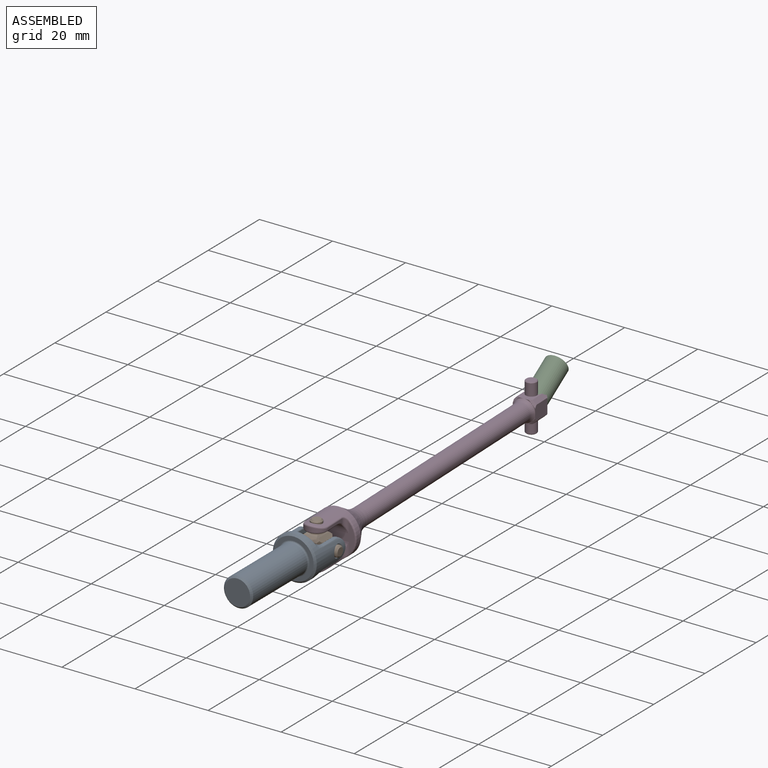
[diagram: assembled view]
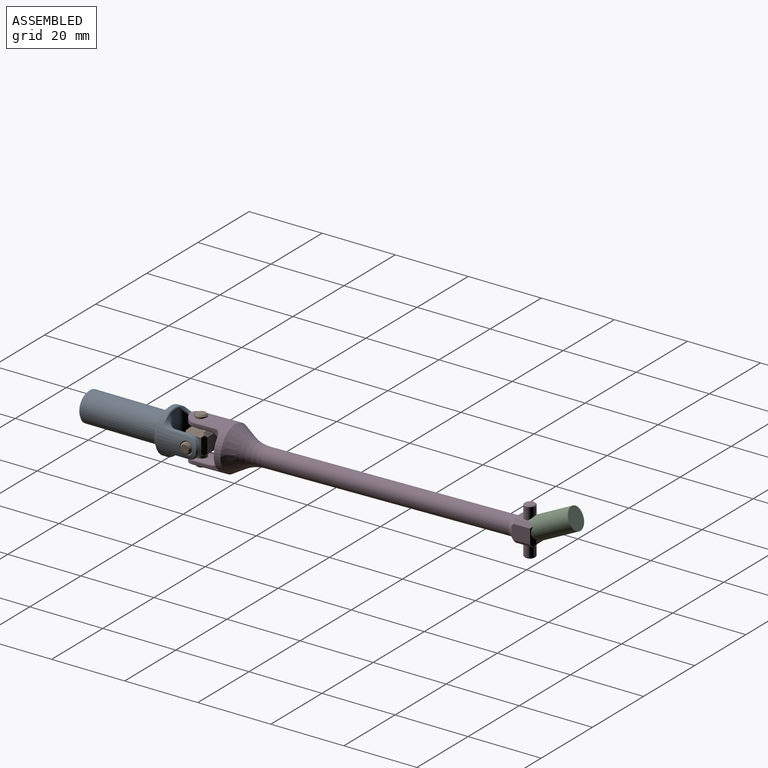
[diagram: assembled view, second angle]
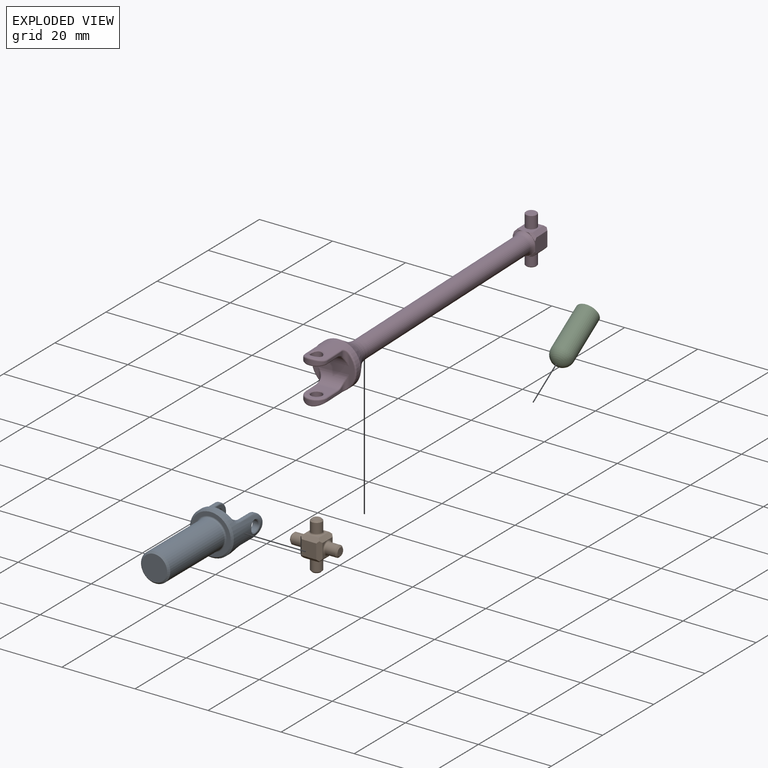
[diagram: exploded view]
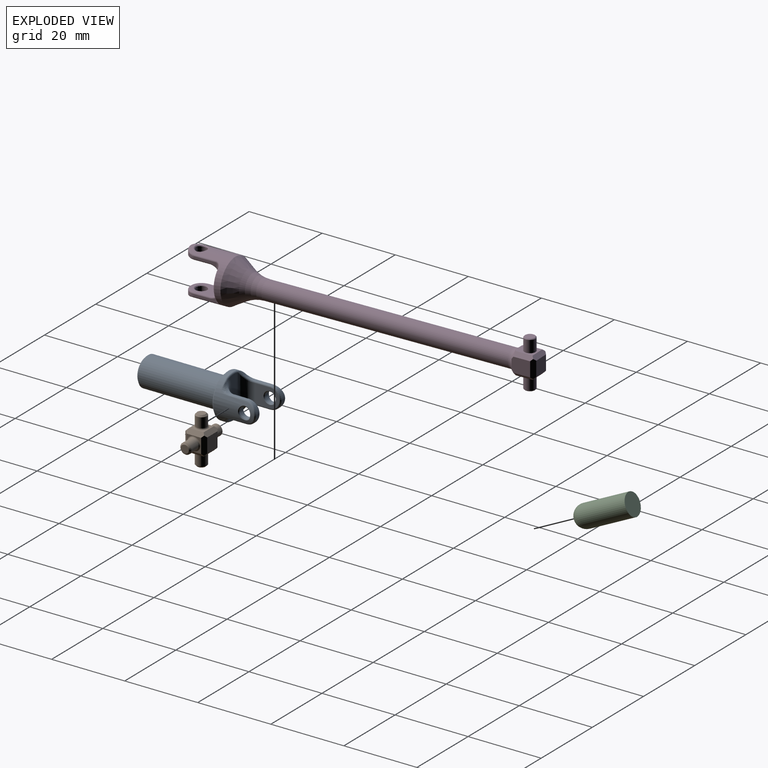
[diagram: exploded view, second angle]
ASSEMBLY  parts=4 mates=3
PART A: 81 faces, bbox 13.8x34.3x14.2 mm
  f0: torus R=4.4mm, axis (0,-1,0), area 8.2mm2, adj f1,f10,f11
  f1: cylinder r=4mm len=21.1mm, axis (0,-1,0), area 530.3mm2, adj f0,f2,f10
  f2: cone r=4mm half-angle=45deg, axis (0,1,0), area 16.7mm2, adj f1,f12
  f3: cone r=6mm half-angle=45deg, axis (0,1,0), area 25.5mm2, adj f4,f11
  f4: cylinder r=6mm len=12mm, axis (0,-1,0), area 137.9mm2, adj f3,f13,f14,f15,f16,f17,f18,f19
  f5: cylinder r=1.5mm len=3mm, axis (1,0,0), area 15.1mm2, adj f8,f18,f34
  f6: cylinder r=1.5mm len=3mm, axis (1,0,0), area 15.1mm2, adj f9,f19,f33
  f7: cylinder r=3mm len=6mm, axis (1,0,0), area 8.3mm2, adj f20,f32,f46,f52,f61
  f8: cone r=1.7mm half-angle=45deg, axis (-1,0,0), area 2.8mm2, adj f5,f76
  f9: cone r=1.7mm half-angle=45deg, axis (1,0,0), area 2.8mm2, adj f6,f77
  f10: torus R=4.4mm, axis (0,-1,0), area 8.2mm2, adj f0,f1,f11
  f11: plane 11x11mm, normal (0,-1,0), area 34.2mm2, adj f0,f3,f10
  f12: plane 7x7mm, normal (0,-1,0), area 38.5mm2, adj f2
  f13: bspline ~1.43x1.2mm, area 0.3mm2, adj f4,f27,f43
  f14: bspline ~1.88x0.43mm, area 0.4mm2, adj f4,f15,f43
  f15: bspline ~0.59x0.36mm, area 0.2mm2, adj f4,f14,f16,f57
  f16: cylinder r=0.4mm len=4.59mm, axis (0,-1,0), area 2mm2, adj f4,f15,f17,f44
  f17: bspline ~3.14x3mm, area 2.5mm2, adj f4,f16,f35,f45
  f18: bspline ~3.41x1.83mm, area 1.5mm2, adj f4,f5,f34
  f19: bspline ~3.41x1.82mm, area 1.5mm2, adj f4,f6,f33
  f20: bspline ~3.14x3mm, area 2.5mm2, adj f4,f7,f21,f32
  f21: cylinder r=0.4mm len=4.59mm, axis (0,1,0), area 2mm2, adj f4,f20,f22,f46
  f22: bspline ~3.76x3.08mm, area 2.4mm2, adj f4,f21,f47,f48
  f23: bspline ~0.7x0.54mm, area 0.4mm2, adj f4,f24,f48,f65
  f24: torus R=5.6mm, axis (0,-1,0), area 2mm2, adj f4,f23,f25,f49
  f25: bspline ~1.03x0.69mm, area 0.5mm2, adj f4,f24,f26,f68
  f26: bspline ~0.78x0.6mm, area 0.3mm2, adj f4,f25,f27,f50
  f27: bspline ~0.78x0.58mm, area 0.3mm2, adj f4,f13,f26,f57
  f28: bspline ~1.43x1.2mm, area 0.3mm2, adj f4,f42,f51
  f29: bspline ~1.88x0.43mm, area 0.4mm2, adj f4,f30,f51
  f30: bspline ~0.59x0.36mm, area 0.2mm2, adj f4,f29,f31,f69
  f31: cylinder r=0.4mm len=4.59mm, axis (0,-1,0), area 2mm2, adj f4,f30,f32,f52
  f32: bspline ~3.14x3mm, area 2.5mm2, adj f4,f7,f20,f31
  f33: bspline ~3.41x1.83mm, area 1.5mm2, adj f4,f6,f19
  f34: bspline ~3.41x1.82mm, area 1.5mm2, adj f4,f5,f18
  f35: bspline ~3.14x3mm, area 2.5mm2, adj f4,f17,f36,f45
  f36: cylinder r=0.4mm len=4.59mm, axis (0,1,0), area 2mm2, adj f4,f35,f37,f53
  f37: bspline ~3.76x3.1mm, area 2.4mm2, adj f4,f36,f54,f55
  f38: bspline ~0.7x0.54mm, area 0.4mm2, adj f4,f39,f55,f67
  f39: torus R=5.6mm, axis (0,-1,0), area 2mm2, adj f4,f38,f40,f49
  f40: bspline ~1.03x0.69mm, area 0.5mm2, adj f4,f39,f41,f66
  f41: bspline ~0.78x0.6mm, area 0.3mm2, adj f4,f40,f42,f56
  f42: bspline ~0.78x0.58mm, area 0.3mm2, adj f4,f28,f41,f69
  f43: bspline ~4.21x2.04mm, area 1.5mm2, adj f13,f14,f57
  f44: plane 4.6x0.59mm, normal (0,0,1), area 2.5mm2, adj f16,f45,f57,f58,f59
  f45: cylinder r=3mm len=6mm, axis (-1,0,0), area 8.3mm2, adj f17,f35,f44,f53,f60
  f46: plane 4.59x0.58mm, normal (0,0,1), area 2.5mm2, adj f7,f21,f47,f62,f63
  f47: bspline ~5.32x2.92mm, area 4mm2, adj f22,f46,f64
  f48: sphere r=0.4mm, area 0mm2, adj f22,f23,f64
  f49: plane 11.2x3.99mm, normal (0,1,0), area 24mm2, adj f24,f39,f65,f66,f67,f68
  f50: bspline ~1.22x0.9mm, area 0.3mm2, adj f26,f57,f68,f80
  f51: bspline ~4.21x2.04mm, area 1.5mm2, adj f28,f29,f69
  f52: plane 4.6x0.59mm, normal (0,0,-1), area 2.5mm2, adj f7,f31,f69,f70,f71
  f53: plane 4.59x0.58mm, normal (0,0,-1), area 2.5mm2, adj f36,f45,f54,f72,f73
  f54: bspline ~5.32x2.92mm, area 4mm2, adj f37,f53,f74
  f55: sphere r=0.4mm, area 0mm2, adj f37,f38,f74
  f56: bspline ~1.22x0.9mm, area 0.3mm2, adj f41,f66,f69,f79
  f57: bspline ~2.55x2.01mm, area 2.2mm2, adj f15,f27,f43,f44,f50,f75,f80
  f58: cylinder r=0.4mm len=4mm, axis (0,-1,0), area 2.5mm2, adj f44,f59,f60,f76
  f59: torus R=3.4mm, axis (0,0,1), area 0.2mm2, adj f44,f58,f67,f75
  f60: torus R=2.6mm, axis (-1,0,0), area 5.6mm2, adj f45,f58,f73,f76
  f61: torus R=2.6mm, axis (1,0,0), area 5.6mm2, adj f7,f63,f70,f77
  f62: torus R=3.4mm, axis (0,0,-1), area 0.2mm2, adj f46,f63,f64,f65
  f63: cylinder r=0.4mm len=4mm, axis (0,1,0), area 2.5mm2, adj f46,f61,f62,f77
  f64: bspline ~3.05x2.98mm, area 2.1mm2, adj f47,f48,f62,f65
  f65: cylinder r=3mm len=8.51mm, axis (0,0,-1), area 31.2mm2, adj f23,f49,f62,f64,f66,f71,f77,f78
  f66: torus R=3mm, axis (0,-1,0), area 4.3mm2, adj f40,f49,f56,f65,f79
  f67: cylinder r=3mm len=8.51mm, axis (0,0,1), area 31.2mm2, adj f38,f49,f59,f68,f72,f74,f75,f76
  f68: torus R=3mm, axis (0,-1,0), area 4.3mm2, adj f25,f49,f50,f67,f80
  f69: bspline ~2.55x2.01mm, area 2.2mm2, adj f30,f42,f51,f52,f56,f78,f79
  f70: cylinder r=0.4mm len=4mm, axis (0,-1,0), area 2.5mm2, adj f52,f61,f71,f77
  f71: torus R=3.4mm, axis (0,0,-1), area 0.2mm2, adj f52,f65,f70,f78
  f72: torus R=3.4mm, axis (0,0,1), area 0.2mm2, adj f53,f67,f73,f74
  f73: cylinder r=0.4mm len=4mm, axis (0,1,0), area 2.5mm2, adj f53,f60,f72,f76
  f74: bspline ~3.05x2.98mm, area 2.1mm2, adj f54,f55,f67,f72
  f75: bspline ~1.37x0.89mm, area 0.9mm2, adj f57,f59,f67,f80
  f76: plane 6.6x5.2mm, normal (-1,0,0), area 22.3mm2, adj f8,f58,f60,f67,f73
  f77: plane 6.6x5.2mm, normal (1,0,0), area 22.3mm2, adj f9,f61,f63,f65,f70
  f78: bspline ~1.37x0.89mm, area 0.9mm2, adj f65,f69,f71,f79
  f79: bspline ~1.57x1.43mm, area 0.6mm2, adj f56,f66,f69,f78
  f80: bspline ~1.57x1.43mm, area 0.6mm2, adj f50,f57,f68,f75
PART B: 38 faces, bbox 13x6x13 mm
  f0: torus R=1.9mm, axis (0,0,1), area 3.2mm2, adj f4,f17,f21
  f1: torus R=1.9mm, axis (1,0,0), area 3.2mm2, adj f5,f18,f25
  f2: torus R=1.9mm, axis (0,0,1), area 3.2mm2, adj f6,f19,f28
  f3: torus R=1.9mm, axis (1,0,0), area 3.2mm2, adj f7,f20,f31
  f4: cylinder r=1.5mm len=3mm, axis (0,0,1), area 25.4mm2, adj f0,f8,f21
  f5: cylinder r=1.5mm len=3mm, axis (1,0,0), area 25.4mm2, adj f1,f9,f25
  f6: cylinder r=1.5mm len=3mm, axis (0,0,1), area 25.4mm2, adj f2,f10,f28
  f7: cylinder r=1.5mm len=3mm, axis (1,0,0), area 25.4mm2, adj f3,f11,f31
  f8: cone r=1.5mm half-angle=45deg, axis (0,0,1), area 4.6mm2, adj f4,f34
  f9: cone r=1.5mm half-angle=45deg, axis (1,0,0), area 4.6mm2, adj f5,f35
  f10: cone r=1.5mm half-angle=45deg, axis (0,0,-1), area 4.6mm2, adj f6,f36
  f11: cone r=1.5mm half-angle=45deg, axis (-1,0,0), area 4.6mm2, adj f7,f37
  f12: plane 4x4mm, normal (0,1,0), area 16mm2, adj f13,f14,f15,f16
  f13: plane 5x1mm, normal (0,0.71,-0.71), area 6.4mm2, adj f12,f14,f16,f17,f22,f23
  f14: plane 5x1mm, normal (-0.71,0.71,0), area 6.4mm2, adj f12,f13,f15,f18,f23,f26
  f15: plane 5x1mm, normal (0,0.71,0.71), area 6.4mm2, adj f12,f14,f16,f19,f26,f29
  f16: plane 5x1mm, normal (0.71,0.71,0), area 6.4mm2, adj f12,f13,f15,f20,f22,f29
  f17: plane 4x4mm, normal (0,0,-1), area 4.7mm2, adj f0,f13,f21,f22,f23,f24
  f18: plane 4x4mm, normal (-1,0,0), area 4.7mm2, adj f1,f14,f23,f25,f26,f27
  f19: plane 4x4mm, normal (0,0,1), area 4.7mm2, adj f2,f15,f26,f28,f29,f30
  f20: plane 4x4mm, normal (1,0,0), area 4.7mm2, adj f3,f16,f22,f29,f31,f32
  f21: torus R=1.9mm, axis (0,0,1), area 3.2mm2, adj f0,f4,f17
  f22: plane 5x1mm, normal (0.71,0,-0.71), area 6.4mm2, adj f13,f16,f17,f20,f24,f32
  f23: plane 5x1mm, normal (-0.71,0,-0.71), area 6.4mm2, adj f13,f14,f17,f18,f24,f27
  f24: plane 5x1mm, normal (0,-0.71,-0.71), area 6.4mm2, adj f17,f22,f23,f27,f32,f33
  f25: torus R=1.9mm, axis (1,0,0), area 3.2mm2, adj f1,f5,f18
  f26: plane 5x1mm, normal (-0.71,0,0.71), area 6.4mm2, adj f14,f15,f18,f19,f27,f30
  f27: plane 5x1mm, normal (-0.71,-0.71,0), area 6.4mm2, adj f18,f23,f24,f26,f30,f33
  f28: torus R=1.9mm, axis (0,0,1), area 3.2mm2, adj f2,f6,f19
  f29: plane 5x1mm, normal (0.71,0,0.71), area 6.4mm2, adj f15,f16,f19,f20,f30,f32
  f30: plane 5x1mm, normal (0,-0.71,0.71), area 6.4mm2, adj f19,f26,f27,f29,f32,f33
  f31: torus R=1.9mm, axis (1,0,0), area 3.2mm2, adj f3,f7,f20
  f32: plane 5x1mm, normal (0.71,-0.71,0), area 6.4mm2, adj f20,f22,f24,f29,f30,f33
  f33: plane 4x4mm, normal (0,-1,0), area 16mm2, adj f24,f27,f30,f32
  f34: plane 2.2x2.2mm, normal (0,0,-1), area 3.8mm2, adj f8
  f35: plane 2.2x2.2mm, normal (-1,0,0), area 3.8mm2, adj f9
  f36: plane 2.2x2.2mm, normal (0,0,1), area 3.8mm2, adj f10
  f37: plane 2.2x2.2mm, normal (1,0,0), area 3.8mm2, adj f11
PART C: 3 faces, bbox 6x6x16 mm
  f0: cylinder r=3mm len=13mm, axis (0,0,-1), area 245mm2, adj f1,f2
  f1: sphere r=3mm, area 56.5mm2, adj f0
  f2: plane 6x6mm, normal (0,0,1), area 28.3mm2, adj f0
PART D: 90 faces, bbox 13x94.3x13 mm
  f0: torus R=4.5mm, axis (0,1,0), area 12.1mm2, adj f2,f16,f18,f19
  f1: torus R=12.5mm, axis (0,1,0), area 49.6mm2, adj f2,f3,f4,f17
  f2: cylinder r=2.5mm len=66.01mm, axis (0,1,0), area 1036.9mm2, adj f0,f1,f16,f17
  f3: cone r=6mm half-angle=30.5deg, axis (0,-1,0), area 64.6mm2, adj f1,f4,f5,f17
  f4: cone r=6mm half-angle=30.5deg, axis (0,-1,0), area 64.6mm2, adj f1,f3,f5,f17
  f5: cylinder r=6mm len=12mm, axis (0,-1,0), area 155.5mm2, adj f3,f4,f27,f28,f29,f30,f31,f32
  f6: cylinder r=1.5mm len=3.3mm, axis (1,0,0), area 31.1mm2, adj f11,f26
  f7: cylinder r=1.5mm len=3mm, axis (1,0,0), area 13.9mm2, adj f12,f27,f37,f41,f51
  f8: cylinder r=3mm len=6mm, axis (-1,0,0), area 8.3mm2, adj f28,f50,f52,f63,f64
  f9: cylinder r=3mm len=6mm, axis (-1,0,0), area 8.3mm2, adj f34,f44,f56,f60,f73
  f10: cylinder r=1.5mm len=3mm, axis (1,0,0), area 13.9mm2, adj f13,f35,f36,f42,f43
  f11: cone r=1.5mm half-angle=45deg, axis (1,0,0), area 2.5mm2, adj f6,f74
  f12: cone r=1.7mm half-angle=45deg, axis (1,0,0), area 2.8mm2, adj f7,f86
  f13: cone r=1.7mm half-angle=45deg, axis (-1,0,0), area 2.8mm2, adj f10,f87
  f14: cylinder r=1.5mm len=3.3mm, axis (1,0,0), area 31.1mm2, adj f15,f88
  f15: cone r=1.5mm half-angle=45deg, axis (-1,0,0), area 2.5mm2, adj f14,f89
  f16: torus R=4.5mm, axis (0,1,0), area 12.1mm2, adj f0,f2,f20,f24
  f17: torus R=12.5mm, axis (0,1,0), area 49.6mm2, adj f1,f2,f3,f4
  f18: plane 3x3mm, normal (0,-1,0), area 0.5mm2, adj f0,f21,f26,f57
  f19: plane 3x3mm, normal (0,-1,0), area 0.5mm2, adj f0,f22,f57,f88
  f20: plane 3x3mm, normal (0,-1,0), area 0.5mm2, adj f16,f23,f59,f88
  f21: plane 1.71x1.71mm, normal (-0.5,-0.71,-0.5), area 1.4mm2, adj f18,f26,f38,f57
  f22: plane 1.71x1.71mm, normal (0.5,-0.71,-0.5), area 1.4mm2, adj f19,f57,f75,f88
  f23: plane 1.71x1.71mm, normal (0.5,-0.71,0.5), area 1.4mm2, adj f20,f59,f79,f88
  f24: plane 3x3mm, normal (0,-1,0), area 0.5mm2, adj f16,f25,f26,f59
  f25: plane 1.71x1.71mm, normal (-0.5,-0.71,0.5), area 1.4mm2, adj f24,f26,f40,f59
  f26: plane 5x4mm, normal (-1,0,0), area 12.6mm2, adj f6,f18,f21,f24,f25,f38,f39,f40
  f27: bspline ~1.94x1.92mm, area 0.8mm2, adj f5,f7,f37,f51
  f28: bspline ~3.14x3mm, area 2.4mm2, adj f5,f8,f29,f50
  f29: cylinder r=0.4mm len=5.85mm, axis (0,-1,0), area 2.5mm2, adj f5,f28,f30,f52
  f30: bspline ~1.85x1.6mm, area 1.4mm2, adj f5,f29,f31,f53
  f31: torus R=5.6mm, axis (0,-1,0), area 5.4mm2, adj f5,f30,f32,f54
  f32: bspline ~1.85x1.6mm, area 1.4mm2, adj f5,f31,f33,f55
  f33: cylinder r=0.4mm len=5.85mm, axis (0,1,0), area 2.5mm2, adj f5,f32,f34,f56
  f34: bspline ~3.14x3mm, area 2.4mm2, adj f5,f9,f33,f44
  f35: bspline ~1.94x1.91mm, area 0.8mm2, adj f5,f10,f36,f43
  f36: bspline ~1.91x1.87mm, area 0.8mm2, adj f5,f10,f35,f42
  f37: bspline ~1.92x1.87mm, area 0.8mm2, adj f5,f7,f27,f41
  f38: plane 5x1mm, normal (-0.71,0,-0.71), area 6.7mm2, adj f21,f26,f39,f57,f76
  f39: plane 5x1mm, normal (-0.71,0.71,0), area 6.4mm2, adj f26,f38,f40,f58,f76,f78
  f40: plane 5x1mm, normal (-0.71,0,0.71), area 6.7mm2, adj f25,f26,f39,f59,f78
  f41: bspline ~1.94x1.91mm, area 0.8mm2, adj f5,f7,f37,f51
  f42: bspline ~1.94x1.92mm, area 0.8mm2, adj f5,f10,f36,f43
  f43: bspline ~1.92x1.87mm, area 0.8mm2, adj f5,f10,f35,f42
  f44: bspline ~3.14x3mm, area 2.4mm2, adj f5,f9,f34,f45
  f45: cylinder r=0.4mm len=5.85mm, axis (0,-1,0), area 2.5mm2, adj f5,f44,f46,f60
  f46: bspline ~1.85x1.6mm, area 1.4mm2, adj f5,f45,f47,f61
  f47: torus R=5.6mm, axis (0,-1,0), area 5.4mm2, adj f5,f46,f48,f54
  f48: bspline ~1.85x1.6mm, area 1.4mm2, adj f5,f47,f49,f62
  f49: cylinder r=0.4mm len=5.85mm, axis (0,1,0), area 2.5mm2, adj f5,f48,f50,f63
  f50: bspline ~3.14x3mm, area 2.4mm2, adj f5,f8,f28,f49
  f51: bspline ~1.91x1.87mm, area 0.8mm2, adj f5,f7,f27,f41
  f52: plane 5.85x1.11mm, normal (0,0,-1), area 3.6mm2, adj f8,f29,f53,f65,f66
  f53: cylinder r=1.15mm len=3.96mm, axis (-1,0,0), area 3.5mm2, adj f30,f52,f54,f67
  f54: plane 11.2x7.52mm, normal (0,-1,0), area 31.6mm2, adj f31,f47,f53,f55,f61,f62,f68,f69
  f55: cylinder r=1.15mm len=3.96mm, axis (-1,0,0), area 3.5mm2, adj f32,f54,f56,f70
  f56: plane 5.86x1.11mm, normal (0,0,-1), area 3.6mm2, adj f9,f33,f55,f71,f72
  f57: plane 5x4mm, normal (0,0,-1), area 19.6mm2, adj f18,f19,f21,f22,f38,f75,f76
  f58: plane 4x4mm, normal (0,1,0), area 16mm2, adj f39,f76,f77,f78
  f59: plane 5x4mm, normal (0,0,1), area 19.6mm2, adj f20,f23,f24,f25,f40,f78,f79
  f60: plane 5.85x1.11mm, normal (0,0,1), area 3.6mm2, adj f9,f45,f61,f80,f81
  f61: cylinder r=1.15mm len=3.96mm, axis (1,0,0), area 3.5mm2, adj f46,f54,f60,f82
  f62: cylinder r=1.15mm len=3.96mm, axis (1,0,0), area 3.5mm2, adj f48,f54,f63,f83
  f63: plane 5.86x1.11mm, normal (0,0,1), area 3.6mm2, adj f8,f49,f62,f84,f85
  f64: torus R=2.6mm, axis (-1,0,0), area 5.6mm2, adj f8,f66,f84,f86
  f65: torus R=3.4mm, axis (0,0,1), area 1.1mm2, adj f52,f66,f67,f68
  f66: cylinder r=0.4mm len=4mm, axis (0,-1,0), area 2.5mm2, adj f52,f64,f65,f86
  f67: bspline ~3.08x1.77mm, area 1mm2, adj f53,f65,f68
  f68: cylinder r=3mm len=8.3mm, axis (0,0,1), area 29.1mm2, adj f54,f65,f67,f83,f85,f86
  f69: cylinder r=3mm len=8.3mm, axis (0,0,-1), area 29.1mm2, adj f54,f70,f72,f80,f82,f87
  f70: bspline ~3.08x1.77mm, area 1mm2, adj f55,f69,f72
  f71: cylinder r=0.4mm len=4mm, axis (0,1,0), area 2.5mm2, adj f56,f72,f73,f87
  f72: torus R=3.4mm, axis (0,0,-1), area 1.1mm2, adj f56,f69,f70,f71
  f73: torus R=2.6mm, axis (-1,0,0), area 5.6mm2, adj f9,f71,f81,f87
  f74: plane 2.6x2.6mm, normal (-1,0,0), area 5.3mm2, adj f11
  f75: plane 5x1mm, normal (0.71,0,-0.71), area 6.7mm2, adj f22,f57,f76,f77,f88
  f76: plane 5x1mm, normal (0,0.71,-0.71), area 6.4mm2, adj f38,f39,f57,f58,f75,f77
  f77: plane 5x1mm, normal (0.71,0.71,0), area 6.4mm2, adj f58,f75,f76,f78,f79,f88
  f78: plane 5x1mm, normal (0,0.71,0.71), area 6.4mm2, adj f39,f40,f58,f59,f77,f79
  f79: plane 5x1mm, normal (0.71,0,0.71), area 6.7mm2, adj f23,f59,f77,f78,f88
  f80: torus R=3.4mm, axis (0,0,-1), area 1.1mm2, adj f60,f69,f81,f82
  f81: cylinder r=0.4mm len=4mm, axis (0,-1,0), area 2.5mm2, adj f60,f73,f80,f87
  f82: bspline ~3.08x1.77mm, area 1mm2, adj f61,f69,f80
  f83: bspline ~3.08x1.77mm, area 1mm2, adj f62,f68,f85
  f84: cylinder r=0.4mm len=4mm, axis (0,1,0), area 2.5mm2, adj f63,f64,f85,f86
  f85: torus R=3.4mm, axis (0,0,1), area 1.1mm2, adj f63,f68,f83,f84
  f86: plane 6.6x5.2mm, normal (1,0,0), area 22.3mm2, adj f12,f64,f66,f68,f84
  f87: plane 6.6x5.2mm, normal (-1,0,0), area 22.3mm2, adj f13,f69,f71,f73,f81
  f88: plane 5x4mm, normal (1,0,0), area 12.6mm2, adj f14,f19,f20,f22,f23,f75,f77,f79
  f89: plane 2.6x2.6mm, normal (1,0,0), area 5.3mm2, adj f15
PLACE A at identity
PLACE B rot(axis=(0,0,-1),180deg) t=(0,31,0)mm
PLACE C rot(axis=(-0.97,0.04,0.22),66.9deg) t=(17.82,83.17,81.08)mm
PLACE D rot(axis=(-0.02,1,0.02),90deg) t=(0.1,28,0)mm
MATE revolute B.f25 <-> A.f60  axis (1,0,0) through (6.5,31,0)mm
MATE revolute B.f21 <-> D.f73  axis (0,0,1) through (0,31,6.5)mm
MATE ball C.f0 <-> D.f11  axis (-0.1,0.9,0.42) through (-2.82,118.95,0)mm
